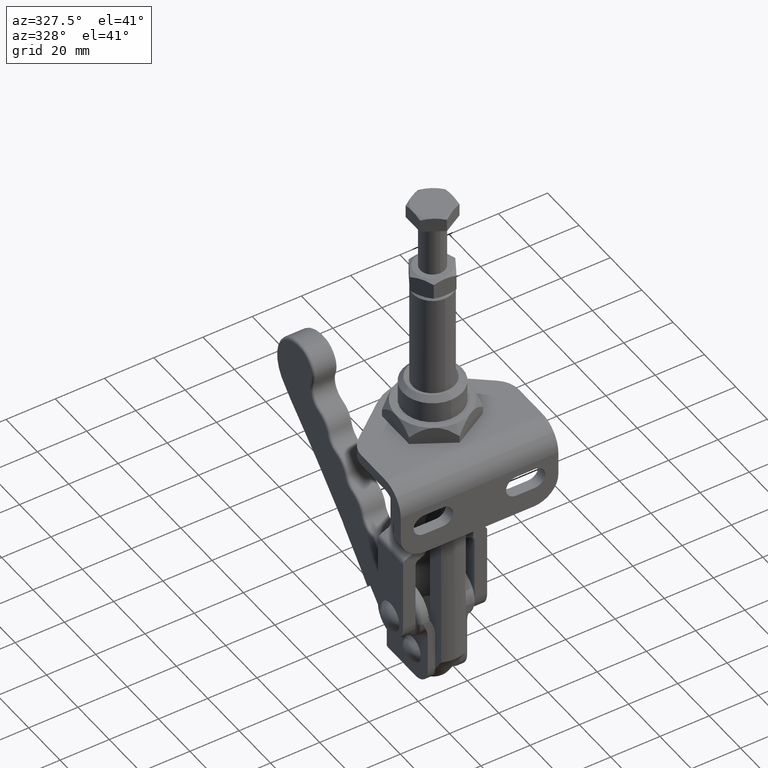
[diagram: clean part render]
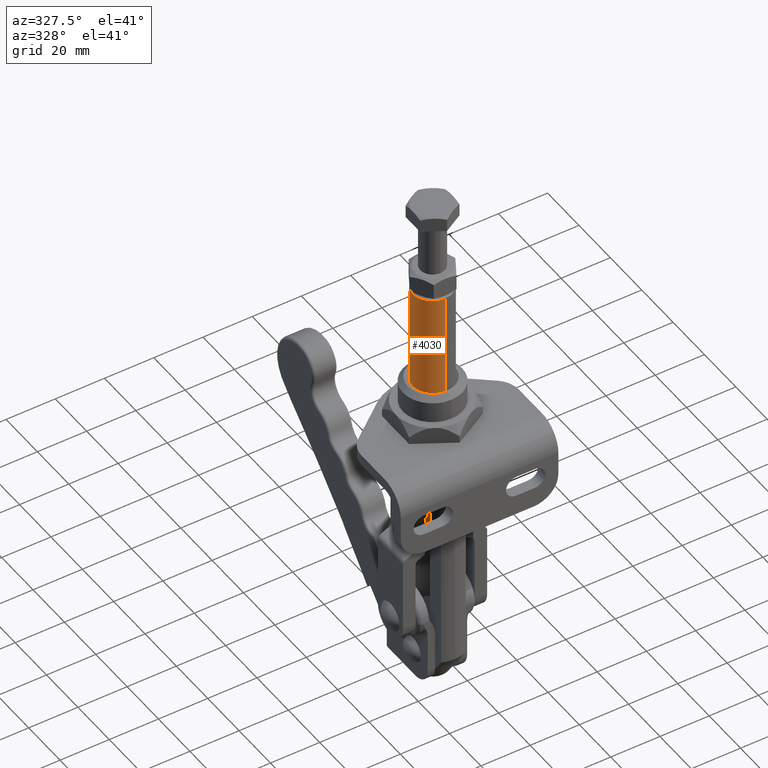
[diagram: same view with one face highlighted and labeled with its STEP entity id]
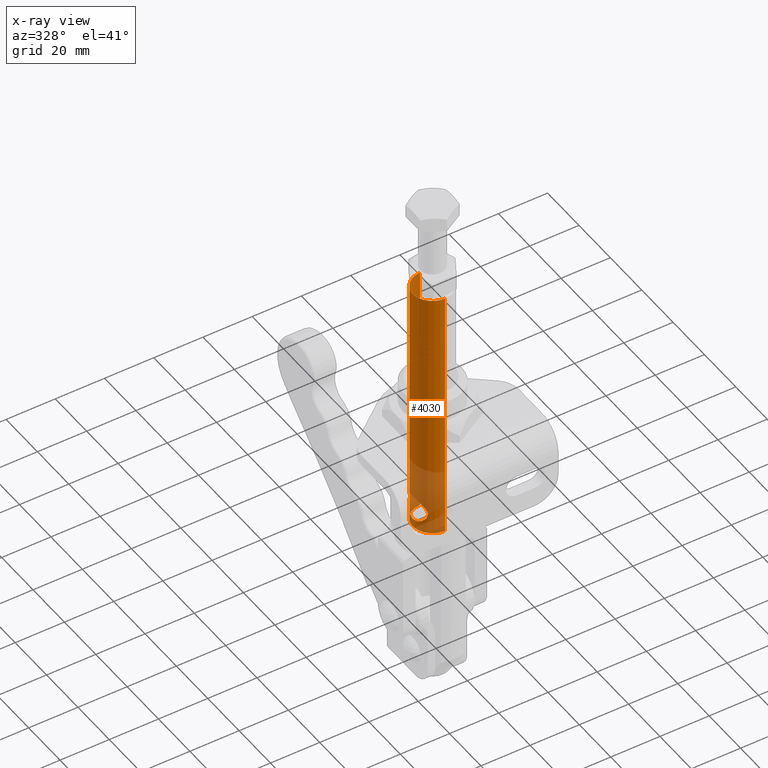
[diagram: x-ray of the same camera — body ghosted, the highlighted face saturated]
A machine part, auxiliary view. The second image highlights one B-rep face of the part: STEP entity #4030.
The next image is the same camera in x-ray: the body ghosted, the highlighted face saturated — about 22% of this face is hidden behind the body in this view.
In plain terms, the highlighted cylindrical surface (edge-blend (fillet) strip) has radius 8 mm, axis along (-0, 0, -1).
Its self-contained STEP definition (entity closure, byte-faithful):
#3459=CARTESIAN_POINT('',(-8.0,9.796851E-016,1.0));
#3460=VERTEX_POINT('',#3459);
#3469=CARTESIAN_POINT('',(8.0,-9.796851E-016,1.0));
#3470=VERTEX_POINT('',#3469);
#3471=CARTESIAN_POINT('',(0.0,0.0,1.0));
#3472=DIRECTION('',(0.0,0.0,-1.0));
#3473=DIRECTION('',(-1.0,0.0,0.0));
#3474=AXIS2_PLACEMENT_3D('',#3471,#3472,#3473);
#3475=CIRCLE('',#3474,8.0);
#3476=EDGE_CURVE('',#3460,#3470,#3475,.T.);
#3503=CARTESIAN_POINT('',(-8.0,9.796851E-016,106.500000000000000));
#3504=VERTEX_POINT('',#3503);
#3520=CARTESIAN_POINT('',(8.0,9.796851E-016,106.500000000000000));
#3521=VERTEX_POINT('',#3520);
#3528=CARTESIAN_POINT('',(0.0,0.0,106.500000000000000));
#3529=DIRECTION('',(0.0,0.0,1.0));
#3530=DIRECTION('',(-1.0,0.0,0.0));
#3531=AXIS2_PLACEMENT_3D('',#3528,#3529,#3530);
#3532=CIRCLE('',#3531,8.0);
#3533=EDGE_CURVE('',#3521,#3504,#3532,.T.);
#3628=CARTESIAN_POINT('',(-8.0,9.796851E-016,1.0));
#3629=DIRECTION('',(0.0,0.0,1.0));
#3630=VECTOR('',#3629,105.500000000000000);
#3631=LINE('',#3628,#3630);
#3632=EDGE_CURVE('',#3460,#3504,#3631,.T.);
#3641=CARTESIAN_POINT('',(8.0,9.796851E-016,106.500000000000000));
#3642=DIRECTION('',(0.0,0.0,-1.0));
#3643=VECTOR('',#3642,105.500000000000000);
#3644=LINE('',#3641,#3643);
#3645=EDGE_CURVE('',#3521,#3470,#3644,.T.);
#3939=CARTESIAN_POINT('',(1.804112E-015,8.0,103.025000000000010));
#3940=VERTEX_POINT('',#3939);
#3946=CARTESIAN_POINT('',(1.804112E-015,8.0,103.025000000000010));
#3947=CARTESIAN_POINT('',(0.250889606047493,8.0,103.025000000000010));
#3948=CARTESIAN_POINT('',(0.509806317246002,7.989633952591521,103.012428694213230));
#3949=CARTESIAN_POINT('',(1.120300801563420,7.927110399857157,102.935839676054210));
#3950=CARTESIAN_POINT('',(1.486320501593714,7.869917798727944,102.865834090455680));
#3951=CARTESIAN_POINT('',(2.596564272729920,7.605055762211956,102.533988611025360));
#3952=CARTESIAN_POINT('',(3.313089708725567,7.313539540654767,102.165437448818200));
#3953=CARTESIAN_POINT('',(4.501037752687221,6.648531023485483,101.200225451005310));
#3954=CARTESIAN_POINT('',(4.967886175038734,6.284063411192726,100.612614295375110));
#3955=CARTESIAN_POINT('',(5.587166133136501,5.740531037627652,99.350325005144683));
#3956=CARTESIAN_POINT('',(5.742156287636037,5.570246150297162,98.674166495467915));
#3957=CARTESIAN_POINT('',(5.743553213696632,5.568805750605197,97.335006578842226));
#3958=CARTESIAN_POINT('',(5.586489194837290,5.739837630712356,96.659361132012123));
#3959=CARTESIAN_POINT('',(4.996714364871629,6.259987468586573,95.435605420879241));
#3960=CARTESIAN_POINT('',(4.572403388151964,6.591028370790672,94.895105910509514));
#3961=CARTESIAN_POINT('',(3.555367829196964,7.190819656177060,94.003851673844565));
#3962=CARTESIAN_POINT('',(2.955064780706934,7.469404979907925,93.640864903140780));
#3963=CARTESIAN_POINT('',(1.565745933787838,7.878633021208353,93.120365517575991));
#3964=CARTESIAN_POINT('',(0.783804753908032,7.999479328248734,92.975634649779465));
#3965=CARTESIAN_POINT('',(-0.773139877189771,8.000517117388515,92.974369682653247));
#3966=CARTESIAN_POINT('',(-1.555437814200377,7.880725615922501,93.117809791755548));
#3967=CARTESIAN_POINT('',(-2.946328806832845,7.472909044631044,93.636303650565623));
#3968=CARTESIAN_POINT('',(-3.547557646779241,7.194726922496141,93.998547889779601));
#3969=CARTESIAN_POINT('',(-4.566268961062302,6.595335360825231,94.888210638416354));
#3970=CARTESIAN_POINT('',(-4.991456449230759,6.264267387205348,95.427809865271684));
#3971=CARTESIAN_POINT('',(-5.583650766342542,5.742693401400966,96.650399524924509));
#3972=CARTESIAN_POINT('',(-5.742156288512201,5.570246149393732,97.325834074195200));
#3973=CARTESIAN_POINT('',(-5.743553212824432,5.568805751504540,98.664992855196601));
#3974=CARTESIAN_POINT('',(-5.590005819992098,5.737650680001179,99.341247216785831));
#3975=CARTESIAN_POINT('',(-5.049786134346183,6.212467690559898,100.448106060409840));
#3976=CARTESIAN_POINT('',(-4.731045445727016,6.468491367841489,100.897478414310700));
#3977=CARTESIAN_POINT('',(-3.736033173427767,7.109602112223946,101.898413832627040));
#3978=CARTESIAN_POINT('',(-2.963634162129858,7.480336204079516,102.374411353741270));
#3979=CARTESIAN_POINT('',(-1.721316594681511,7.824430233194333,102.809832533720540));
#3980=CARTESIAN_POINT('',(-1.290676565516289,7.903422842143602,102.906730288684540));
#3981=CARTESIAN_POINT('',(-0.574652703078512,7.987472246545506,103.009848939168620));
#3982=CARTESIAN_POINT('',(-0.282465627069752,8.0,103.025000000000010));
#3983=CARTESIAN_POINT('',(1.804112E-015,8.0,103.025000000000010));
#3984=B_SPLINE_CURVE_WITH_KNOTS('',3,(#3946,#3947,#3948,#3949,#3950,#3951,#3952,#3953,#3954,#3955,#3956,#3957,#3958,#3959,#3960,#3961,#3962,#3963,#3964,#3965,#3966,#3967,#3968,#3969,#3970,#3971,#3972,#3973,#3974,#3975,#3976,#3977,#3978,#3979,#3980,#3981,#3982,#3983),.UNSPECIFIED.,.T.,.U.,(4,2,2,2,2,2,2,2,2,2,2,2,2,2,2,2,2,2,4),(0.0,0.101385842970948,0.202771685941896,0.405543371883791,0.607852071008352,0.810623756950248,1.013395442892143,1.216167128834039,1.418938814775935,1.621710500717830,1.824482186659726,2.027253872601621,2.230025558543517,2.432797244485412,2.635568930427308,2.787763441588063,3.016055208329196,3.130201091699763,3.244346975070330),.UNSPECIFIED.);
#3985=EDGE_CURVE('',#3940,#3940,#3984,.T.);
#4016=CARTESIAN_POINT('',(0.0,0.0,0.0));
#4017=DIRECTION('',(0.0,0.0,1.0));
#4018=DIRECTION('',(-1.0,0.0,0.0));
#4019=AXIS2_PLACEMENT_3D('',#4016,#4017,#4018);
#4020=CYLINDRICAL_SURFACE('',#4019,8.0);
#4021=ORIENTED_EDGE('',*,*,#3632,.T.);
#4022=ORIENTED_EDGE('',*,*,#3533,.F.);
#4023=ORIENTED_EDGE('',*,*,#3645,.T.);
#4024=ORIENTED_EDGE('',*,*,#3476,.F.);
#4025=EDGE_LOOP('',(#4021,#4022,#4023,#4024));
#4026=FACE_OUTER_BOUND('',#4025,.T.);
#4027=ORIENTED_EDGE('',*,*,#3985,.F.);
#4028=EDGE_LOOP('',(#4027));
#4029=FACE_BOUND('',#4028,.T.);
#4030=ADVANCED_FACE('',(#4026,#4029),#4020,.T.);